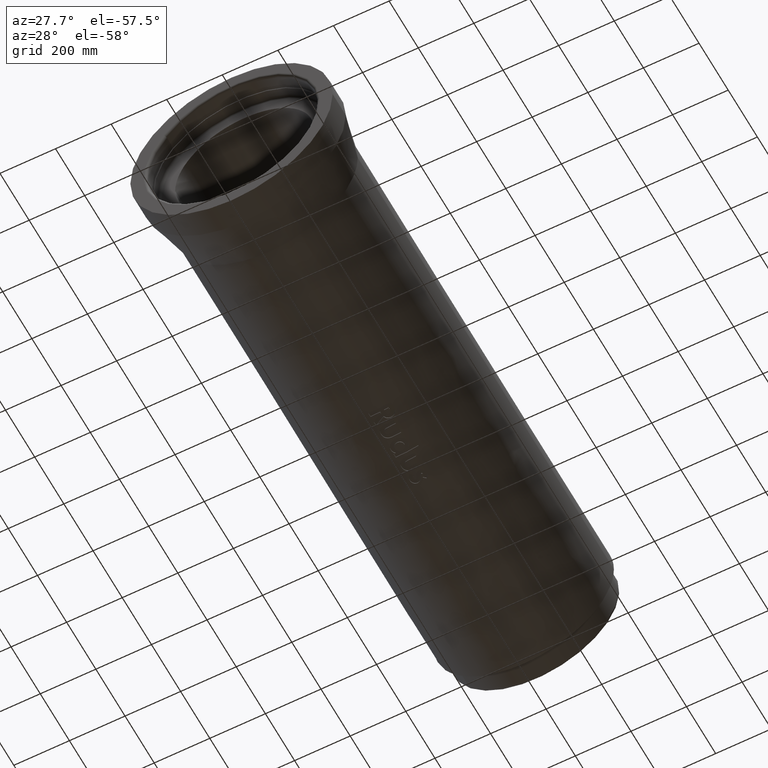
[diagram: clean part render]
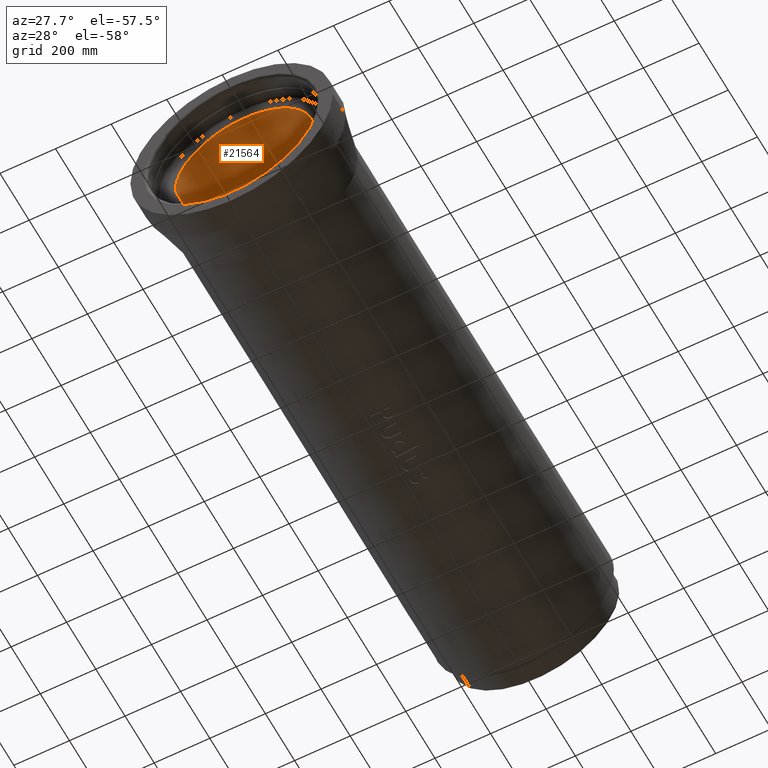
[diagram: same view with one face highlighted and labeled with its STEP entity id]
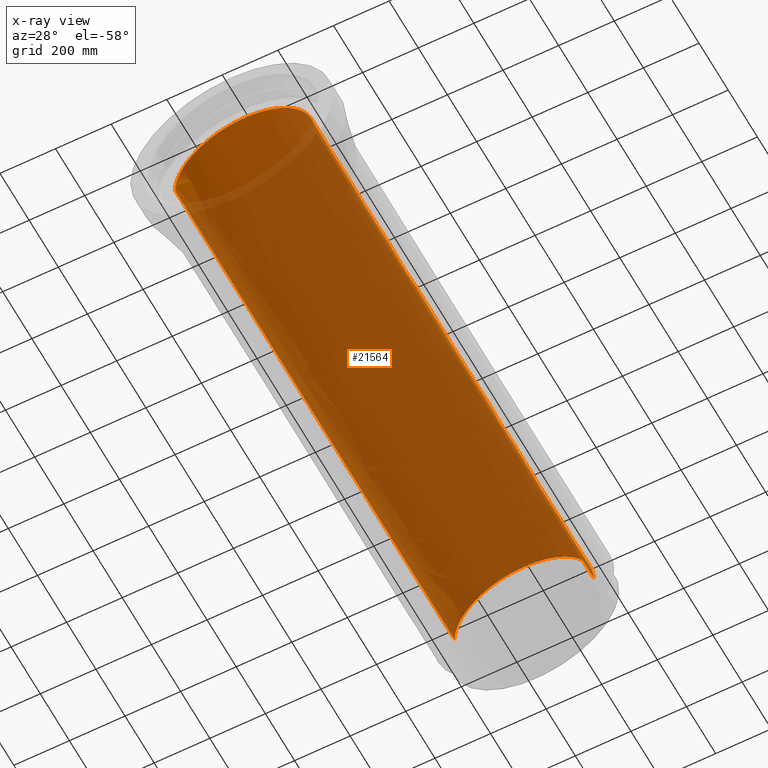
[diagram: x-ray of the same camera — body ghosted, the highlighted face saturated]
A machine part, auxiliary view. The second image highlights one B-rep face of the part: STEP entity #21564.
The next image is the same camera in x-ray: the body ghosted, the highlighted face saturated — about 89% of this face is hidden behind the body in this view.
In plain terms, the highlighted face is a freeform B-spline surface patch.
Its self-contained STEP definition (entity closure, byte-faithful):
#78 = ORIENTED_EDGE ( 'NONE', *, *, #13298, .F. ) ;
#87 = CARTESIAN_POINT ( 'NONE',  ( 219.4347038072606608, -119.7848519847972426, 1915.000000000000000 ) ) ;
#95 = CARTESIAN_POINT ( 'NONE',  ( -129.8939275421382149, 223.6594630511356456, 0.0000000000000000000 ) ) ;
#133 = DIRECTION ( 'NONE',  ( 1.000000000000000000, 0.0000000000000000000, 0.0000000000000000000 ) ) ;
#184 = AXIS2_PLACEMENT_3D ( 'NONE', #19128, #15658, #22730 ) ;
#268 = EDGE_CURVE ( 'NONE', #1205, #12297, #5475, .T. ) ;
#394 = CARTESIAN_POINT ( 'NONE',  ( 0.0000000000000000000, 0.0000000000000000000, 1915.000000000000000 ) ) ;
#428 = CARTESIAN_POINT ( 'NONE',  ( 250.0000000000000000, -9.085614205428527157E-14, 638.3333333333332575 ) ) ;
#502 = DIRECTION ( 'NONE',  ( 1.000000000000000000, 0.0000000000000000000, 0.0000000000000000000 ) ) ;
#525 = CARTESIAN_POINT ( 'NONE',  ( 219.4347038072113492, -119.7848519848876094, -2.775557561562891351E-14 ) ) ;
#544 = ORIENTED_EDGE ( 'NONE', *, *, #4229, .F. ) ;
#561 = CARTESIAN_POINT ( 'NONE',  ( -250.0000000000000568, 1.110223024625156540E-13, 1276.666666666666515 ) ) ;
#635 = CARTESIAN_POINT ( 'NONE',  ( 176.7766952966367739, -176.7766952966369729, 1915.000000000000000 ) ) ;
#665 = CIRCLE ( 'NONE', #9933, 250.0000000000000000 ) ;
#727 = CARTESIAN_POINT ( 'NONE',  ( 250.0000000000000000, -5.264003784185826530E-31, 0.0000000000000000000 ) ) ;
#882 = CARTESIAN_POINT ( 'NONE',  ( 176.7766952966368308, -176.7766952966369445, -2.775557561562891351E-14 ) ) ;
#910 = CARTESIAN_POINT ( 'NONE',  ( 129.8939275421381581, -223.6594630511355604, 638.3333333333332575 ) ) ;
#1059 = ORIENTED_EDGE ( 'NONE', *, *, #20259, .T. ) ;
#1070 = DIRECTION ( 'NONE',  ( 1.000000000000000000, 0.0000000000000000000, 0.0000000000000000000 ) ) ;
#1141 = FACE_OUTER_BOUND ( 'NONE', #18305, .T. ) ;
#1205 = VERTEX_POINT ( 'NONE', #21878 ) ;
#1251 = CARTESIAN_POINT ( 'NONE',  ( 248.3052600167535502, -29.61782896224972461, 1276.666666666666515 ) ) ;
#1316 = AXIS2_PLACEMENT_3D ( 'NONE', #21158, #10614, #3422 ) ;
#1362 = DIRECTION ( 'NONE',  ( 1.000000000000000000, 0.0000000000000000000, 0.0000000000000000000 ) ) ;
#1367 = CARTESIAN_POINT ( 'NONE',  ( 249.2799839635136721, -19.80563451541162578, 1276.666666666666515 ) ) ;
#1439 = EDGE_CURVE ( 'NONE', #3365, #6343, #2891, .T. ) ;
#1488 = CARTESIAN_POINT ( 'NONE',  ( -129.8939275421383286, -223.6594630511354467, 1276.666666666666515 ) ) ;
#1600 = CARTESIAN_POINT ( 'NONE',  ( 129.8939275421383002, 223.6594630511355888, 0.0000000000000000000 ) ) ;
#1717 = CARTESIAN_POINT ( 'NONE',  ( -66.30224600000020985, -250.0000000000000000, 0.0000000000000000000 ) ) ;
#1828 = CARTESIAN_POINT ( 'NONE',  ( 66.30224599999995405, -250.0000000000001137, 638.3333333333332575 ) ) ;
#2008 = CIRCLE ( 'NONE', #7920, 250.0000000000000000 ) ;
#2144 = CIRCLE ( 'NONE', #20667, 250.0000000000000000 ) ;
#2205 = DIRECTION ( 'NONE',  ( 1.000000000000000000, 0.0000000000000000000, 0.0000000000000000000 ) ) ;
#2539 = EDGE_CURVE ( 'NONE', #12297, #3365, #11411, .T. ) ;
#2646 = CARTESIAN_POINT ( 'NONE',  ( 0.0000000000000000000, 0.0000000000000000000, 0.0000000000000000000 ) ) ;
#2696 = CARTESIAN_POINT ( 'NONE',  ( 0.0000000000000000000, 0.0000000000000000000, 1915.000000000000000 ) ) ;
#2720 = EDGE_CURVE ( 'NONE', #3760, #18049, #665, .T. ) ;
#2789 = VERTEX_POINT ( 'NONE', #12313 ) ;
#2836 = EDGE_CURVE ( 'NONE', #1205, #11492, #8040, .T. ) ;
#2871 = CARTESIAN_POINT ( 'NONE',  ( 0.0000000000000000000, 0.0000000000000000000, 1915.000000000000000 ) ) ;
#2883 = DIRECTION ( 'NONE',  ( 0.0000000000000000000, 0.0000000000000000000, 1.000000000000000000 ) ) ;
#2891 = CIRCLE ( 'NONE', #4348, 250.0000000000000000 ) ;
#3061 = DIRECTION ( 'NONE',  ( 1.000000000000000000, 0.0000000000000000000, 0.0000000000000000000 ) ) ;
#3090 = EDGE_CURVE ( 'NONE', #21578, #9268, #2144, .T. ) ;
#3103 = CARTESIAN_POINT ( 'NONE',  ( 250.0000000000000000, -3.315112300000142120, 0.0000000000000000000 ) ) ;
#3107 = CIRCLE ( 'NONE', #22013, 250.0000000000000000 ) ;
#3221 = CARTESIAN_POINT ( 'NONE',  ( 66.30224600000006774, 250.0000000000001137, 638.3333333333332575 ) ) ;
#3241 = CIRCLE ( 'NONE', #6182, 250.0000000000000000 ) ;
#3272 = AXIS2_PLACEMENT_3D ( 'NONE', #18883, #2883, #8324 ) ;
#3296 = CARTESIAN_POINT ( 'NONE',  ( 250.0000000000000000, -9.085614205428527157E-14, 638.3333333333332575 ) ) ;
#3336 = CARTESIAN_POINT ( 'NONE',  ( 66.30224599999995405, -250.0000000000001137, 0.0000000000000000000 ) ) ;
#3365 = VERTEX_POINT ( 'NONE', #21454 ) ;
#3378 = EDGE_CURVE ( 'NONE', #19435, #6637, #15873, .T. ) ;
#3422 = DIRECTION ( 'NONE',  ( 1.000000000000000000, 0.0000000000000000000, 0.0000000000000000000 ) ) ;
#3453 = CARTESIAN_POINT ( 'NONE',  ( -249.9999999999999716, 66.30224600000012458, 0.0000000000000000000 ) ) ;
#3563 = CARTESIAN_POINT ( 'NONE',  ( -66.30224599999998247, 250.0000000000000568, 0.0000000000000000000 ) ) ;
#3605 = CARTESIAN_POINT ( 'NONE',  ( -249.9999999999999716, 1.110223024625156540E-13, 1915.000000000000000 ) ) ;
#3650 = CIRCLE ( 'NONE', #4003, 250.0000000000000000 ) ;
#3672 = CARTESIAN_POINT ( 'NONE',  ( 240.1645451437283896, 88.05806712611921228, 0.0000000000000000000 ) ) ;
#3760 = VERTEX_POINT ( 'NONE', #9912 ) ;
#3953 = AXIS2_PLACEMENT_3D ( 'NONE', #4792, #6756, #3061 ) ;
#4003 = AXIS2_PLACEMENT_3D ( 'NONE', #2646, #7856, #14838 ) ;
#4153 = CARTESIAN_POINT ( 'NONE',  ( -1.387778780781445676E-13, -250.0000000000000000, 1915.000000000000000 ) ) ;
#4176 = DIRECTION ( 'NONE',  ( 1.000000000000000000, 0.0000000000000000000, 0.0000000000000000000 ) ) ;
#4229 = EDGE_CURVE ( 'NONE', #7415, #17864, #21773, .T. ) ;
#4348 = AXIS2_PLACEMENT_3D ( 'NONE', #11417, #8161, #22320 ) ;
#4374 = CARTESIAN_POINT ( 'NONE',  ( 214.2829095002357747, -139.2704810930380290, 0.0000000000000000000 ) ) ;
#4491 = CARTESIAN_POINT ( 'NONE',  ( 250.0000000000000000, -3.315112300000143009, 1276.666666666666515 ) ) ;
#4526 = CARTESIAN_POINT ( 'NONE',  ( 0.0000000000000000000, 0.0000000000000000000, 0.0000000000000000000 ) ) ;
#4786 = ORIENTED_EDGE ( 'NONE', *, *, #6900, .F. ) ;
#4792 = CARTESIAN_POINT ( 'NONE',  ( 0.0000000000000000000, 0.0000000000000000000, 0.0000000000000000000 ) ) ;
#4948 = CARTESIAN_POINT ( 'NONE',  ( 248.3052600167534933, 29.61782896224960737, 638.3333333333332575 ) ) ;
#4996 = DIRECTION ( 'NONE',  ( 1.000000000000000000, 0.0000000000000000000, 0.0000000000000000000 ) ) ;
#5067 = CARTESIAN_POINT ( 'NONE',  ( -223.6594630511355604, -129.8939275421381012, 638.3333333333332575 ) ) ;
#5183 = CARTESIAN_POINT ( 'NONE',  ( 240.1645451437283327, 88.05806712611922649, 1276.666666666666515 ) ) ;
#5294 = CARTESIAN_POINT ( 'NONE',  ( -223.6594630511355604, -129.8939275421381012, 1915.000000000000000 ) ) ;
#5323 = ORIENTED_EDGE ( 'NONE', *, *, #8959, .F. ) ;
#5360 = VERTEX_POINT ( 'NONE', #9316 ) ;
#5404 = CARTESIAN_POINT ( 'NONE',  ( -129.8939275421382149, 223.6594630511356172, 1276.666666666666515 ) ) ;
#5459 = CIRCLE ( 'NONE', #15483, 250.0000000000000000 ) ;
#5475 = CIRCLE ( 'NONE', #21396, 250.0000000000000000 ) ;
#5510 = CARTESIAN_POINT ( 'NONE',  ( 0.0000000000000000000, 0.0000000000000000000, 0.0000000000000000000 ) ) ;
#5589 = DIRECTION ( 'NONE',  ( 0.0000000000000000000, 0.0000000000000000000, 1.000000000000000000 ) ) ;
#5674 = CARTESIAN_POINT ( 'NONE',  ( -70.46308752678795884, -239.8644536904136544, 1915.000000000000000 ) ) ;
#5730 = DIRECTION ( 'NONE',  ( 0.0000000000000000000, 0.0000000000000000000, 1.000000000000000000 ) ) ;
#5822 = EDGE_CURVE ( 'NONE', #15786, #2789, #3650, .T. ) ;
#5832 = AXIS2_PLACEMENT_3D ( 'NONE', #12982, #12874, #20052 ) ;
#5980 = CARTESIAN_POINT ( 'NONE',  ( 250.0000000000000000, -5.264003784185826530E-31, 0.0000000000000000000 ) ) ;
#5989 = CARTESIAN_POINT ( 'NONE',  ( -239.8644482227844890, -70.46308593000428289, -2.775557561562891351E-14 ) ) ;
#5994 = VERTEX_POINT ( 'NONE', #7942 ) ;
#6106 = CARTESIAN_POINT ( 'NONE',  ( 214.2829095002357747, -139.2704810930380290, 1915.000000000000000 ) ) ;
#6182 = AXIS2_PLACEMENT_3D ( 'NONE', #2696, #10011, #15347 ) ;
#6208 = ORIENTED_EDGE ( 'NONE', *, *, #10058, .F. ) ;
#6340 = CARTESIAN_POINT ( 'NONE',  ( 250.0000000000000000, -9.085614205428527157E-14, 1276.666666666666515 ) ) ;
#6343 = VERTEX_POINT ( 'NONE', #7398 ) ;
#6454 = CARTESIAN_POINT ( 'NONE',  ( 249.2799839635136721, -19.80563451541162578, 638.3333333333332575 ) ) ;
#6567 = CARTESIAN_POINT ( 'NONE',  ( 248.3052600167535218, -29.61782896224972461, 1915.000000000000000 ) ) ;
#6577 = VERTEX_POINT ( 'NONE', #4153 ) ;
#6637 = VERTEX_POINT ( 'NONE', #12975 ) ;
#6683 = CARTESIAN_POINT ( 'NONE',  ( 66.30224600000006774, 250.0000000000000568, 0.0000000000000000000 ) ) ;
#6756 = DIRECTION ( 'NONE',  ( 0.0000000000000000000, 0.0000000000000000000, 1.000000000000000000 ) ) ;
#6798 = CARTESIAN_POINT ( 'NONE',  ( -129.8939275421383286, -223.6594630511354467, 638.3333333333332575 ) ) ;
#6830 = CIRCLE ( 'NONE', #19808, 250.0000000000000000 ) ;
#6900 = EDGE_CURVE ( 'NONE', #9961, #15786, #9193, .T. ) ;
#6912 = CARTESIAN_POINT ( 'NONE',  ( -223.6594630511354467, 129.8939275421383002, 1915.000000000000000 ) ) ;
#7026 = CARTESIAN_POINT ( 'NONE',  ( 249.2799839635136152, 19.80563451541139131, 638.3333333333332575 ) ) ;
#7138 = CARTESIAN_POINT ( 'NONE',  ( 214.2829095002358315, 139.2704810930380006, 1915.000000000000000 ) ) ;
#7398 = CARTESIAN_POINT ( 'NONE',  ( -176.7766952966369445, -176.7766952966368024, 1915.000000000000000 ) ) ;
#7415 = VERTEX_POINT ( 'NONE', #882 ) ;
#7441 = DIRECTION ( 'NONE',  ( 0.0000000000000000000, 0.0000000000000000000, 1.000000000000000000 ) ) ;
#7475 = CARTESIAN_POINT ( 'NONE',  ( 250.0000000000000000, 3.315112299999901868, 1276.666666666666515 ) ) ;
#7516 = EDGE_CURVE ( 'NONE', #6577, #12240, #9949, .T. ) ;
#7645 = ORIENTED_EDGE ( 'NONE', *, *, #5822, .F. ) ;
#7699 = CARTESIAN_POINT ( 'NONE',  ( 250.0000000000000000, 3.315112299999901868, 638.3333333333332575 ) ) ;
#7739 = DIRECTION ( 'NONE',  ( 0.0000000000000000000, 0.0000000000000000000, 1.000000000000000000 ) ) ;
#7856 = DIRECTION ( 'NONE',  ( 0.0000000000000000000, 0.0000000000000000000, 1.000000000000000000 ) ) ;
#7874 = AXIS2_PLACEMENT_3D ( 'NONE', #5510, #5730, #21742 ) ;
#7920 = AXIS2_PLACEMENT_3D ( 'NONE', #14938, #17025, #8080 ) ;
#7942 = CARTESIAN_POINT ( 'NONE',  ( 250.0000000000000000, -1.416384724411994916E-13, 1915.000000000000000 ) ) ;
#7958 = CARTESIAN_POINT ( 'NONE',  ( 0.0000000000000000000, 0.0000000000000000000, 0.0000000000000000000 ) ) ;
#7970 = CARTESIAN_POINT ( 'NONE',  ( 129.8939275421381581, -223.6594630511355604, 0.0000000000000000000 ) ) ;
#8040 = B_SPLINE_CURVE_WITH_KNOTS ( 'NONE', 3,
 ( #3605, #561, #11459, #8944 ),
 .UNSPECIFIED., .F., .F.,
 ( 4, 4 ),
 ( 0.0000000000000000000, 1.000000000000000000 ),
 .UNSPECIFIED. ) ;
#8069 = ORIENTED_EDGE ( 'NONE', *, *, #2836, .F. ) ;
#8080 = DIRECTION ( 'NONE',  ( 1.000000000000000000, 0.0000000000000000000, 0.0000000000000000000 ) ) ;
#8161 = DIRECTION ( 'NONE',  ( 0.0000000000000000000, 0.0000000000000000000, 1.000000000000000000 ) ) ;
#8204 = CARTESIAN_POINT ( 'NONE',  ( 249.8682973152556315, -9.931784077710817726, 1276.666666666666515 ) ) ;
#8211 = CARTESIAN_POINT ( 'NONE',  ( 0.0000000000000000000, 0.0000000000000000000, 1915.000000000000000 ) ) ;
#8318 = CARTESIAN_POINT ( 'NONE',  ( 240.1645451437284464, -88.05806712611931175, 1915.000000000000000 ) ) ;
#8324 = DIRECTION ( 'NONE',  ( 1.000000000000000000, 0.0000000000000000000, 0.0000000000000000000 ) ) ;
#8414 = ORIENTED_EDGE ( 'NONE', *, *, #14050, .T. ) ;
#8416 = B_SPLINE_SURFACE_WITH_KNOTS ( 'NONE', 3, 3, ( 
 ( #11807, #6340, #13316, #20619 ),
 ( #15067, #4491, #13430, #3103 ),
 ( #17143, #8204, #11577, #17260 ),
 ( #11462, #1367, #6454, #10071 ),
 ( #6567, #1251, #18650, #11918 ),
 ( #8318, #15409, #13659, #22014 ),
 ( #6106, #13196, #9837, #4374 ),
 ( #18533, #16797, #910, #7970 ),
 ( #22825, #20847, #1828, #3336 ),
 ( #10421, #17376, #19106, #1717 ),
 ( #19564, #1488, #6798, #21187 ),
 ( #5294, #19340, #5067, #21300 ),
 ( #15527, #13780, #8779, #8895 ),
 ( #19224, #15982, #13896, #3453 ),
 ( #6912, #20962, #12154, #15756 ),
 ( #8549, #5404, #21079, #95 ),
 ( #12037, #17492, #17824, #3563 ),
 ( #12488, #22595, #3221, #6683 ),
 ( #10303, #15871, #8434, #1600 ),
 ( #7138, #8665, #14011, #14126 ),
 ( #10643, #5183, #14237, #3672 ),
 ( #22940, #10750, #4948, #12268 ),
 ( #10533, #17607, #7026, #12381 ),
 ( #15639, #19454, #22711, #17717 ),
 ( #12826, #7475, #7699, #18047 ),
 ( #9116, #18160, #428, #12709 ) ),
 .UNSPECIFIED., .T., .F., .F.,
 ( 4, 1, 1, 1, 1, 2, 2, 2, 2, 2, 2, 2, 1, 1, 1, 1, 4 ),
 ( 4, 4 ),
 ( 0.0000000000000000000, 0.006250000000000088818, 0.01249999999999995559, 0.01875000000000004441, 0.02499999999999991118, 0.1250000000000000000, 0.2500000000000000000, 0.3750000000000000000, 0.5000000000000000000, 0.6250000000000000000, 0.7500000000000000000, 0.8750000000000000000, 0.9749999999999999778, 0.9812499999999999556, 0.9875000000000000444, 0.9937500000000000222, 1.000000000000000000 ),
 ( 0.0000000000000000000, 1.000000000000000000 ),
 .UNSPECIFIED. ) ;
#8434 = CARTESIAN_POINT ( 'NONE',  ( 129.8939275421383002, 223.6594630511355888, 638.3333333333332575 ) ) ;
#8549 = CARTESIAN_POINT ( 'NONE',  ( -129.8939275421382149, 223.6594630511356456, 1915.000000000000000 ) ) ;
#8571 = CARTESIAN_POINT ( 'NONE',  ( 0.0000000000000000000, 0.0000000000000000000, 1915.000000000000000 ) ) ;
#8665 = CARTESIAN_POINT ( 'NONE',  ( 214.2829095002358031, 139.2704810930380006, 1276.666666666666515 ) ) ;
#8681 = CIRCLE ( 'NONE', #184, 250.0000000000000000 ) ;
#8779 = CARTESIAN_POINT ( 'NONE',  ( -250.0000000000001137, -66.30224599999989721, 638.3333333333332575 ) ) ;
#8789 = VERTEX_POINT ( 'NONE', #16699 ) ;
#8849 = ORIENTED_EDGE ( 'NONE', *, *, #268, .T. ) ;
#8895 = CARTESIAN_POINT ( 'NONE',  ( -250.0000000000001137, -66.30224599999989721, 0.0000000000000000000 ) ) ;
#8944 = CARTESIAN_POINT ( 'NONE',  ( -249.9999999999999716, 7.081923622059974578E-14, 0.0000000000000000000 ) ) ;
#8959 = EDGE_CURVE ( 'NONE', #5360, #17746, #13974, .T. ) ;
#9074 = ORIENTED_EDGE ( 'NONE', *, *, #1439, .T. ) ;
#9116 = CARTESIAN_POINT ( 'NONE',  ( 250.0000000000000000, -9.063930161978817068E-14, 1915.000000000000000 ) ) ;
#9177 = AXIS2_PLACEMENT_3D ( 'NONE', #7958, #15283, #20379 ) ;
#9193 = CIRCLE ( 'NONE', #3272, 250.0000000000000000 ) ;
#9248 = EDGE_CURVE ( 'NONE', #2789, #19435, #22499, .T. ) ;
#9268 = VERTEX_POINT ( 'NONE', #5674 ) ;
#9316 = CARTESIAN_POINT ( 'NONE',  ( 70.46308592239478230, -239.8644482250198564, -5.551115123125782702E-14 ) ) ;
#9593 = CARTESIAN_POINT ( 'NONE',  ( 0.0000000000000000000, 0.0000000000000000000, 0.0000000000000000000 ) ) ;
#9639 = ORIENTED_EDGE ( 'NONE', *, *, #7516, .T. ) ;
#9837 = CARTESIAN_POINT ( 'NONE',  ( 214.2829095002357747, -139.2704810930380290, 638.3333333333332575 ) ) ;
#9912 = CARTESIAN_POINT ( 'NONE',  ( 119.7848547564030213, -219.4347087837115851, 1915.000000000000000 ) ) ;
#9933 = AXIS2_PLACEMENT_3D ( 'NONE', #19758, #15919, #4996 ) ;
#9945 = CARTESIAN_POINT ( 'NONE',  ( 250.0000000000000000, -9.085614205428527157E-14, 1276.666666666666515 ) ) ;
#9949 = CIRCLE ( 'NONE', #11045, 250.0000000000000000 ) ;
#9961 = VERTEX_POINT ( 'NONE', #5989 ) ;
#10011 = DIRECTION ( 'NONE',  ( 0.0000000000000000000, 0.0000000000000000000, 1.000000000000000000 ) ) ;
#10058 = EDGE_CURVE ( 'NONE', #17864, #8789, #5459, .T. ) ;
#10067 = DIRECTION ( 'NONE',  ( 1.000000000000000000, 0.0000000000000000000, 0.0000000000000000000 ) ) ;
#10071 = CARTESIAN_POINT ( 'NONE',  ( 249.2799839635136436, -19.80563451541162578, 0.0000000000000000000 ) ) ;
#10183 = CARTESIAN_POINT ( 'NONE',  ( 0.0000000000000000000, 0.0000000000000000000, 0.0000000000000000000 ) ) ;
#10216 = ORIENTED_EDGE ( 'NONE', *, *, #3378, .F. ) ;
#10303 = CARTESIAN_POINT ( 'NONE',  ( 129.8939275421383002, 223.6594630511355888, 1915.000000000000000 ) ) ;
#10313 = ORIENTED_EDGE ( 'NONE', *, *, #2539, .T. ) ;
#10395 = EDGE_CURVE ( 'NONE', #12240, #3760, #3241, .T. ) ;
#10421 = CARTESIAN_POINT ( 'NONE',  ( -66.30224600000020985, -250.0000000000000000, 1915.000000000000000 ) ) ;
#10457 = DIRECTION ( 'NONE',  ( 0.0000000000000000000, 0.0000000000000000000, 1.000000000000000000 ) ) ;
#10533 = CARTESIAN_POINT ( 'NONE',  ( 249.2799839635136152, 19.80563451541139131, 1915.000000000000000 ) ) ;
#10543 = ORIENTED_EDGE ( 'NONE', *, *, #22234, .F. ) ;
#10614 = DIRECTION ( 'NONE',  ( 0.0000000000000000000, 0.0000000000000000000, 1.000000000000000000 ) ) ;
#10643 = CARTESIAN_POINT ( 'NONE',  ( 240.1645451437283896, 88.05806712611921228, 1915.000000000000000 ) ) ;
#10681 = AXIS2_PLACEMENT_3D ( 'NONE', #394, #7441, #502 ) ;
#10712 = DIRECTION ( 'NONE',  ( 1.000000000000000000, 0.0000000000000000000, 0.0000000000000000000 ) ) ;
#10750 = CARTESIAN_POINT ( 'NONE',  ( 248.3052600167534933, 29.61782896224960737, 1276.666666666666515 ) ) ;
#10850 = CARTESIAN_POINT ( 'NONE',  ( 119.7848520273882826, -219.4347037840111341, -2.775557561562891351E-14 ) ) ;
#10897 = ORIENTED_EDGE ( 'NONE', *, *, #10395, .T. ) ;
#11045 = AXIS2_PLACEMENT_3D ( 'NONE', #2871, #15404, #1362 ) ;
#11137 = CARTESIAN_POINT ( 'NONE',  ( 0.0000000000000000000, 0.0000000000000000000, 0.0000000000000000000 ) ) ;
#11411 = CIRCLE ( 'NONE', #10681, 250.0000000000000000 ) ;
#11417 = CARTESIAN_POINT ( 'NONE',  ( 0.0000000000000000000, 0.0000000000000000000, 1915.000000000000000 ) ) ;
#11459 = CARTESIAN_POINT ( 'NONE',  ( -250.0000000000000568, 1.110223024625156540E-13, 638.3333333333332575 ) ) ;
#11462 = CARTESIAN_POINT ( 'NONE',  ( 249.2799839635136436, -19.80563451541162578, 1915.000000000000000 ) ) ;
#11492 = VERTEX_POINT ( 'NONE', #20564 ) ;
#11574 = CARTESIAN_POINT ( 'NONE',  ( 0.0000000000000000000, 0.0000000000000000000, 1915.000000000000000 ) ) ;
#11577 = CARTESIAN_POINT ( 'NONE',  ( 249.8682973152556599, -9.931784077710817726, 638.3333333333332575 ) ) ;
#11606 = VERTEX_POINT ( 'NONE', #11635 ) ;
#11628 = CIRCLE ( 'NONE', #15346, 250.0000000000000000 ) ;
#11635 = CARTESIAN_POINT ( 'NONE',  ( 239.8644536899108175, -70.46308752849944312, 1915.000000000000000 ) ) ;
#11691 = DIRECTION ( 'NONE',  ( 0.0000000000000000000, 0.0000000000000000000, 1.000000000000000000 ) ) ;
#11807 = CARTESIAN_POINT ( 'NONE',  ( 250.0000000000000000, -9.063930161978817068E-14, 1915.000000000000000 ) ) ;
#11918 = CARTESIAN_POINT ( 'NONE',  ( 248.3052600167535218, -29.61782896224972461, 0.0000000000000000000 ) ) ;
#11958 = AXIS2_PLACEMENT_3D ( 'NONE', #4526, #18567, #4176 ) ;
#11988 = ORIENTED_EDGE ( 'NONE', *, *, #3090, .T. ) ;
#12031 = AXIS2_PLACEMENT_3D ( 'NONE', #8571, #13919, #14151 ) ;
#12037 = CARTESIAN_POINT ( 'NONE',  ( -66.30224599999998247, 250.0000000000000568, 1915.000000000000000 ) ) ;
#12154 = CARTESIAN_POINT ( 'NONE',  ( -223.6594630511355035, 129.8939275421383002, 638.3333333333332575 ) ) ;
#12240 = VERTEX_POINT ( 'NONE', #13686 ) ;
#12268 = CARTESIAN_POINT ( 'NONE',  ( 248.3052600167534933, 29.61782896224960382, 0.0000000000000000000 ) ) ;
#12297 = VERTEX_POINT ( 'NONE', #17059 ) ;
#12313 = CARTESIAN_POINT ( 'NONE',  ( -176.7766952966369445, -176.7766952966368024, -2.775557561562891351E-14 ) ) ;
#12381 = CARTESIAN_POINT ( 'NONE',  ( 249.2799839635136152, 19.80563451541139131, 0.0000000000000000000 ) ) ;
#12488 = CARTESIAN_POINT ( 'NONE',  ( 66.30224600000006774, 250.0000000000000568, 1915.000000000000000 ) ) ;
#12709 = CARTESIAN_POINT ( 'NONE',  ( 250.0000000000000000, -9.063930161978817068E-14, 0.0000000000000000000 ) ) ;
#12826 = CARTESIAN_POINT ( 'NONE',  ( 250.0000000000000000, 3.315112299999901868, 1915.000000000000000 ) ) ;
#12861 = AXIS2_PLACEMENT_3D ( 'NONE', #11137, #21917, #2205 ) ;
#12874 = DIRECTION ( 'NONE',  ( 0.0000000000000000000, 0.0000000000000000000, 1.000000000000000000 ) ) ;
#12971 = ORIENTED_EDGE ( 'NONE', *, *, #15489, .F. ) ;
#12975 = CARTESIAN_POINT ( 'NONE',  ( -70.46308592116859870, -239.8644482253800163, -5.551115123125782702E-14 ) ) ;
#12982 = CARTESIAN_POINT ( 'NONE',  ( 0.0000000000000000000, 0.0000000000000000000, 0.0000000000000000000 ) ) ;
#13050 = ORIENTED_EDGE ( 'NONE', *, *, #9248, .F. ) ;
#13196 = CARTESIAN_POINT ( 'NONE',  ( 214.2829095002357747, -139.2704810930380290, 1276.666666666666515 ) ) ;
#13298 = EDGE_CURVE ( 'NONE', #17746, #7415, #11628, .T. ) ;
#13316 = CARTESIAN_POINT ( 'NONE',  ( 250.0000000000000000, -9.085614205428527157E-14, 638.3333333333332575 ) ) ;
#13359 = DIRECTION ( 'NONE',  ( 0.0000000000000000000, 0.0000000000000000000, 1.000000000000000000 ) ) ;
#13430 = CARTESIAN_POINT ( 'NONE',  ( 250.0000000000000000, -3.315112300000143009, 638.3333333333332575 ) ) ;
#13459 = EDGE_CURVE ( 'NONE', #17752, #11606, #8681, .T. ) ;
#13630 = VERTEX_POINT ( 'NONE', #21772 ) ;
#13659 = CARTESIAN_POINT ( 'NONE',  ( 240.1645451437284748, -88.05806712611932596, 638.3333333333332575 ) ) ;
#13686 = CARTESIAN_POINT ( 'NONE',  ( 70.46308592249364722, -239.8644482249907526, 1915.000000000000000 ) ) ;
#13724 = EDGE_CURVE ( 'NONE', #6343, #21578, #2008, .T. ) ;
#13780 = CARTESIAN_POINT ( 'NONE',  ( -250.0000000000001137, -66.30224599999989721, 1276.666666666666515 ) ) ;
#13896 = CARTESIAN_POINT ( 'NONE',  ( -249.9999999999999716, 66.30224600000012458, 638.3333333333332575 ) ) ;
#13919 = DIRECTION ( 'NONE',  ( 0.0000000000000000000, 0.0000000000000000000, 1.000000000000000000 ) ) ;
#13974 = CIRCLE ( 'NONE', #3953, 250.0000000000000000 ) ;
#14011 = CARTESIAN_POINT ( 'NONE',  ( 214.2829095002358031, 139.2704810930380006, 638.3333333333332575 ) ) ;
#14050 = EDGE_CURVE ( 'NONE', #18049, #17752, #14617, .T. ) ;
#14126 = CARTESIAN_POINT ( 'NONE',  ( 214.2829095002358315, 139.2704810930380006, 0.0000000000000000000 ) ) ;
#14151 = DIRECTION ( 'NONE',  ( 1.000000000000000000, 0.0000000000000000000, 0.0000000000000000000 ) ) ;
#14205 = CIRCLE ( 'NONE', #7874, 250.0000000000000000 ) ;
#14237 = CARTESIAN_POINT ( 'NONE',  ( 240.1645451437283612, 88.05806712611922649, 638.3333333333332575 ) ) ;
#14400 = ORIENTED_EDGE ( 'NONE', *, *, #16155, .F. ) ;
#14435 = EDGE_CURVE ( 'NONE', #9268, #6577, #6830, .T. ) ;
#14617 = CIRCLE ( 'NONE', #12031, 250.0000000000000000 ) ;
#14838 = DIRECTION ( 'NONE',  ( 1.000000000000000000, 0.0000000000000000000, 0.0000000000000000000 ) ) ;
#14839 = DIRECTION ( 'NONE',  ( 1.000000000000000000, 0.0000000000000000000, 0.0000000000000000000 ) ) ;
#14938 = CARTESIAN_POINT ( 'NONE',  ( 0.0000000000000000000, 0.0000000000000000000, 1915.000000000000000 ) ) ;
#15067 = CARTESIAN_POINT ( 'NONE',  ( 250.0000000000000000, -3.315112300000142120, 1915.000000000000000 ) ) ;
#15283 = DIRECTION ( 'NONE',  ( 0.0000000000000000000, 0.0000000000000000000, 1.000000000000000000 ) ) ;
#15346 = AXIS2_PLACEMENT_3D ( 'NONE', #17691, #21162, #15501 ) ;
#15347 = DIRECTION ( 'NONE',  ( 1.000000000000000000, 0.0000000000000000000, 0.0000000000000000000 ) ) ;
#15404 = DIRECTION ( 'NONE',  ( 0.0000000000000000000, 0.0000000000000000000, 1.000000000000000000 ) ) ;
#15409 = CARTESIAN_POINT ( 'NONE',  ( 240.1645451437285033, -88.05806712611934017, 1276.666666666666515 ) ) ;
#15483 = AXIS2_PLACEMENT_3D ( 'NONE', #10183, #11691, #17258 ) ;
#15489 = EDGE_CURVE ( 'NONE', #11492, #9961, #17530, .T. ) ;
#15501 = DIRECTION ( 'NONE',  ( 1.000000000000000000, 0.0000000000000000000, 0.0000000000000000000 ) ) ;
#15527 = CARTESIAN_POINT ( 'NONE',  ( -250.0000000000001137, -66.30224599999989721, 1915.000000000000000 ) ) ;
#15639 = CARTESIAN_POINT ( 'NONE',  ( 249.8682973152556599, 9.931784077710576142, 1915.000000000000000 ) ) ;
#15658 = DIRECTION ( 'NONE',  ( 0.0000000000000000000, 0.0000000000000000000, 1.000000000000000000 ) ) ;
#15756 = CARTESIAN_POINT ( 'NONE',  ( -223.6594630511354467, 129.8939275421383002, 0.0000000000000000000 ) ) ;
#15786 = VERTEX_POINT ( 'NONE', #18933 ) ;
#15794 = CARTESIAN_POINT ( 'NONE',  ( 0.0000000000000000000, 0.0000000000000000000, 1915.000000000000000 ) ) ;
#15871 = CARTESIAN_POINT ( 'NONE',  ( 129.8939275421383002, 223.6594630511355888, 1276.666666666666515 ) ) ;
#15873 = CIRCLE ( 'NONE', #5832, 250.0000000000000000 ) ;
#15919 = DIRECTION ( 'NONE',  ( 0.0000000000000000000, 0.0000000000000000000, 1.000000000000000000 ) ) ;
#15982 = CARTESIAN_POINT ( 'NONE',  ( -249.9999999999999716, 66.30224600000012458, 1276.666666666666515 ) ) ;
#16130 = ORIENTED_EDGE ( 'NONE', *, *, #13459, .T. ) ;
#16155 = EDGE_CURVE ( 'NONE', #13630, #5360, #14205, .T. ) ;
#16683 = ORIENTED_EDGE ( 'NONE', *, *, #13724, .T. ) ;
#16699 = CARTESIAN_POINT ( 'NONE',  ( 239.8644482248772647, -70.46308592288011141, 0.0000000000000000000 ) ) ;
#16797 = CARTESIAN_POINT ( 'NONE',  ( 129.8939275421381581, -223.6594630511355604, 1276.666666666666515 ) ) ;
#16801 = VERTEX_POINT ( 'NONE', #727 ) ;
#16988 = ORIENTED_EDGE ( 'NONE', *, *, #21883, .F. ) ;
#17025 = DIRECTION ( 'NONE',  ( 0.0000000000000000000, 0.0000000000000000000, 1.000000000000000000 ) ) ;
#17059 = CARTESIAN_POINT ( 'NONE',  ( -239.8644482227554136, -70.46308593010306254, 1915.000000000000000 ) ) ;
#17143 = CARTESIAN_POINT ( 'NONE',  ( 249.8682973152556599, -9.931784077710817726, 1915.000000000000000 ) ) ;
#17190 = B_SPLINE_CURVE_WITH_KNOTS ( 'NONE', 3,
 ( #18749, #9945, #3296, #5980 ),
 .UNSPECIFIED., .F., .F.,
 ( 4, 4 ),
 ( 0.0000000000000000000, 1.000000000000000000 ),
 .UNSPECIFIED. ) ;
#17258 = DIRECTION ( 'NONE',  ( 1.000000000000000000, 0.0000000000000000000, 0.0000000000000000000 ) ) ;
#17260 = CARTESIAN_POINT ( 'NONE',  ( 249.8682973152556599, -9.931784077710817726, 0.0000000000000000000 ) ) ;
#17376 = CARTESIAN_POINT ( 'NONE',  ( -66.30224600000020985, -250.0000000000000000, 1276.666666666666515 ) ) ;
#17492 = CARTESIAN_POINT ( 'NONE',  ( -66.30224599999998247, 250.0000000000000568, 1276.666666666666515 ) ) ;
#17530 = CIRCLE ( 'NONE', #11958, 250.0000000000000000 ) ;
#17607 = CARTESIAN_POINT ( 'NONE',  ( 249.2799839635136152, 19.80563451541139131, 1276.666666666666515 ) ) ;
#17691 = CARTESIAN_POINT ( 'NONE',  ( 0.0000000000000000000, 0.0000000000000000000, 0.0000000000000000000 ) ) ;
#17717 = CARTESIAN_POINT ( 'NONE',  ( 249.8682973152556599, 9.931784077710576142, 0.0000000000000000000 ) ) ;
#17746 = VERTEX_POINT ( 'NONE', #10850 ) ;
#17752 = VERTEX_POINT ( 'NONE', #87 ) ;
#17824 = CARTESIAN_POINT ( 'NONE',  ( -66.30224599999998247, 250.0000000000001137, 638.3333333333332575 ) ) ;
#17864 = VERTEX_POINT ( 'NONE', #525 ) ;
#17998 = CARTESIAN_POINT ( 'NONE',  ( -119.7848520288291922, -219.4347037832245348, -5.551115123125782702E-14 ) ) ;
#18047 = CARTESIAN_POINT ( 'NONE',  ( 250.0000000000000000, 3.315112299999901868, 0.0000000000000000000 ) ) ;
#18049 = VERTEX_POINT ( 'NONE', #635 ) ;
#18160 = CARTESIAN_POINT ( 'NONE',  ( 250.0000000000000000, -9.085614205428527157E-14, 1276.666666666666515 ) ) ;
#18305 = EDGE_LOOP ( 'NONE', ( #8069, #8849, #10313, #9074, #16683, #11988, #21925, #9639, #10897, #18385, #8414, #16130, #1059, #19545, #16988, #6208, #544, #78, #5323, #14400, #10543, #10216, #13050, #7645, #4786, #12971 ) ) ;
#18385 = ORIENTED_EDGE ( 'NONE', *, *, #2720, .T. ) ;
#18533 = CARTESIAN_POINT ( 'NONE',  ( 129.8939275421381581, -223.6594630511355604, 1915.000000000000000 ) ) ;
#18567 = DIRECTION ( 'NONE',  ( 0.0000000000000000000, 0.0000000000000000000, 1.000000000000000000 ) ) ;
#18577 = CARTESIAN_POINT ( 'NONE',  ( 0.0000000000000000000, 0.0000000000000000000, 1915.000000000000000 ) ) ;
#18650 = CARTESIAN_POINT ( 'NONE',  ( 248.3052600167535502, -29.61782896224972461, 638.3333333333332575 ) ) ;
#18749 = CARTESIAN_POINT ( 'NONE',  ( 250.0000000000000000, -1.416384724411994916E-13, 1915.000000000000000 ) ) ;
#18873 = DIRECTION ( 'NONE',  ( 0.0000000000000000000, 0.0000000000000000000, 1.000000000000000000 ) ) ;
#18883 = CARTESIAN_POINT ( 'NONE',  ( 0.0000000000000000000, 0.0000000000000000000, 0.0000000000000000000 ) ) ;
#18933 = CARTESIAN_POINT ( 'NONE',  ( -219.4347037839590939, -119.7848520274836517, -2.775557561562891351E-14 ) ) ;
#19106 = CARTESIAN_POINT ( 'NONE',  ( -66.30224600000020985, -250.0000000000000000, 638.3333333333332575 ) ) ;
#19128 = CARTESIAN_POINT ( 'NONE',  ( 0.0000000000000000000, 0.0000000000000000000, 1915.000000000000000 ) ) ;
#19224 = CARTESIAN_POINT ( 'NONE',  ( -249.9999999999999716, 66.30224600000012458, 1915.000000000000000 ) ) ;
#19340 = CARTESIAN_POINT ( 'NONE',  ( -223.6594630511355604, -129.8939275421381012, 1276.666666666666515 ) ) ;
#19435 = VERTEX_POINT ( 'NONE', #17998 ) ;
#19454 = CARTESIAN_POINT ( 'NONE',  ( 249.8682973152556315, 9.931784077710576142, 1276.666666666666515 ) ) ;
#19545 = ORIENTED_EDGE ( 'NONE', *, *, #22181, .T. ) ;
#19564 = CARTESIAN_POINT ( 'NONE',  ( -129.8939275421383286, -223.6594630511354467, 1915.000000000000000 ) ) ;
#19758 = CARTESIAN_POINT ( 'NONE',  ( 0.0000000000000000000, 0.0000000000000000000, 1915.000000000000000 ) ) ;
#19808 = AXIS2_PLACEMENT_3D ( 'NONE', #15794, #10457, #133 ) ;
#20052 = DIRECTION ( 'NONE',  ( 1.000000000000000000, 0.0000000000000000000, 0.0000000000000000000 ) ) ;
#20119 = CARTESIAN_POINT ( 'NONE',  ( -119.7848520287386407, -219.4347037832739602, 1915.000000000000000 ) ) ;
#20259 = EDGE_CURVE ( 'NONE', #11606, #5994, #3107, .T. ) ;
#20379 = DIRECTION ( 'NONE',  ( 1.000000000000000000, 0.0000000000000000000, 0.0000000000000000000 ) ) ;
#20564 = CARTESIAN_POINT ( 'NONE',  ( -249.9999999999999716, 7.081923622059974578E-14, 0.0000000000000000000 ) ) ;
#20585 = CIRCLE ( 'NONE', #22443, 250.0000000000000000 ) ;
#20619 = CARTESIAN_POINT ( 'NONE',  ( 250.0000000000000000, -9.063930161978817068E-14, 0.0000000000000000000 ) ) ;
#20667 = AXIS2_PLACEMENT_3D ( 'NONE', #11574, #18873, #10067 ) ;
#20847 = CARTESIAN_POINT ( 'NONE',  ( 66.30224599999995405, -250.0000000000001137, 1276.666666666666515 ) ) ;
#20962 = CARTESIAN_POINT ( 'NONE',  ( -223.6594630511354467, 129.8939275421383002, 1276.666666666666515 ) ) ;
#21079 = CARTESIAN_POINT ( 'NONE',  ( -129.8939275421382149, 223.6594630511355888, 638.3333333333332575 ) ) ;
#21158 = CARTESIAN_POINT ( 'NONE',  ( 0.0000000000000000000, 0.0000000000000000000, 0.0000000000000000000 ) ) ;
#21162 = DIRECTION ( 'NONE',  ( 0.0000000000000000000, 0.0000000000000000000, 1.000000000000000000 ) ) ;
#21187 = CARTESIAN_POINT ( 'NONE',  ( -129.8939275421383286, -223.6594630511354467, 0.0000000000000000000 ) ) ;
#21300 = CARTESIAN_POINT ( 'NONE',  ( -223.6594630511355604, -129.8939275421381012, 0.0000000000000000000 ) ) ;
#21396 = AXIS2_PLACEMENT_3D ( 'NONE', #18577, #13359, #1070 ) ;
#21454 = CARTESIAN_POINT ( 'NONE',  ( -219.4347087836589765, -119.7848547564979924, 1915.000000000000000 ) ) ;
#21564 = ADVANCED_FACE ( 'NONE', ( #1141 ), #8416, .F. ) ;
#21578 = VERTEX_POINT ( 'NONE', #20119 ) ;
#21690 = CIRCLE ( 'NONE', #1316, 250.0000000000000000 ) ;
#21742 = DIRECTION ( 'NONE',  ( 1.000000000000000000, 0.0000000000000000000, 0.0000000000000000000 ) ) ;
#21772 = CARTESIAN_POINT ( 'NONE',  ( -8.326672684688674053E-14, -250.0000000000000000, 0.0000000000000000000 ) ) ;
#21773 = CIRCLE ( 'NONE', #9177, 250.0000000000000000 ) ;
#21878 = CARTESIAN_POINT ( 'NONE',  ( -249.9999999999999716, 1.110223024625156540E-13, 1915.000000000000000 ) ) ;
#21883 = EDGE_CURVE ( 'NONE', #8789, #16801, #21690, .T. ) ;
#21917 = DIRECTION ( 'NONE',  ( 0.0000000000000000000, 0.0000000000000000000, 1.000000000000000000 ) ) ;
#21925 = ORIENTED_EDGE ( 'NONE', *, *, #14435, .T. ) ;
#22013 = AXIS2_PLACEMENT_3D ( 'NONE', #8211, #7739, #14839 ) ;
#22014 = CARTESIAN_POINT ( 'NONE',  ( 240.1645451437284464, -88.05806712611931175, 0.0000000000000000000 ) ) ;
#22181 = EDGE_CURVE ( 'NONE', #5994, #16801, #17190, .T. ) ;
#22234 = EDGE_CURVE ( 'NONE', #6637, #13630, #20585, .T. ) ;
#22320 = DIRECTION ( 'NONE',  ( 1.000000000000000000, 0.0000000000000000000, 0.0000000000000000000 ) ) ;
#22443 = AXIS2_PLACEMENT_3D ( 'NONE', #9593, #5589, #10712 ) ;
#22499 = CIRCLE ( 'NONE', #12861, 250.0000000000000000 ) ;
#22595 = CARTESIAN_POINT ( 'NONE',  ( 66.30224600000006774, 250.0000000000000568, 1276.666666666666515 ) ) ;
#22711 = CARTESIAN_POINT ( 'NONE',  ( 249.8682973152556599, 9.931784077710576142, 638.3333333333332575 ) ) ;
#22730 = DIRECTION ( 'NONE',  ( 1.000000000000000000, 0.0000000000000000000, 0.0000000000000000000 ) ) ;
#22825 = CARTESIAN_POINT ( 'NONE',  ( 66.30224599999995405, -250.0000000000001137, 1915.000000000000000 ) ) ;
#22940 = CARTESIAN_POINT ( 'NONE',  ( 248.3052600167534933, 29.61782896224960382, 1915.000000000000000 ) ) ;